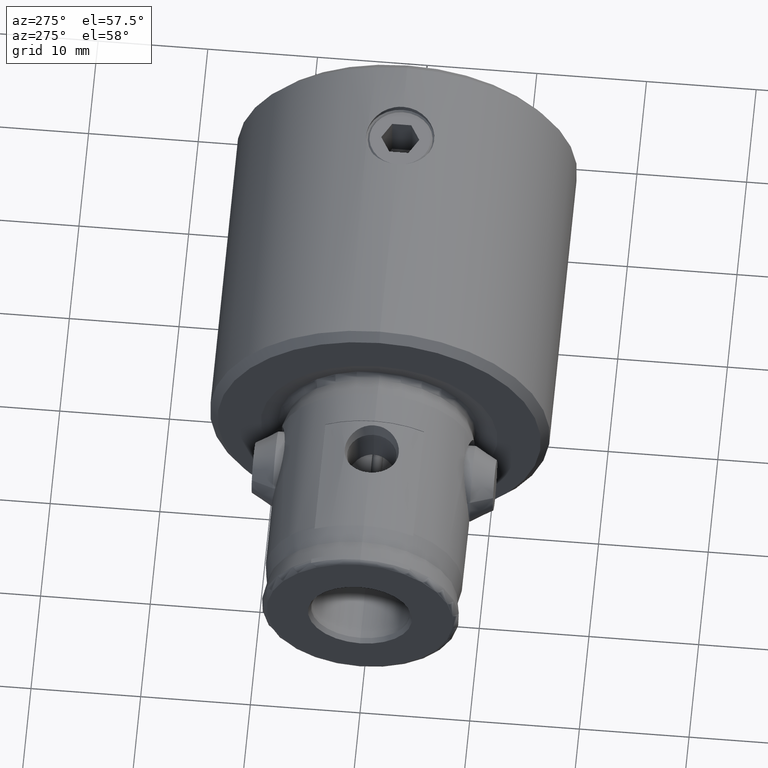
[diagram: clean part render]
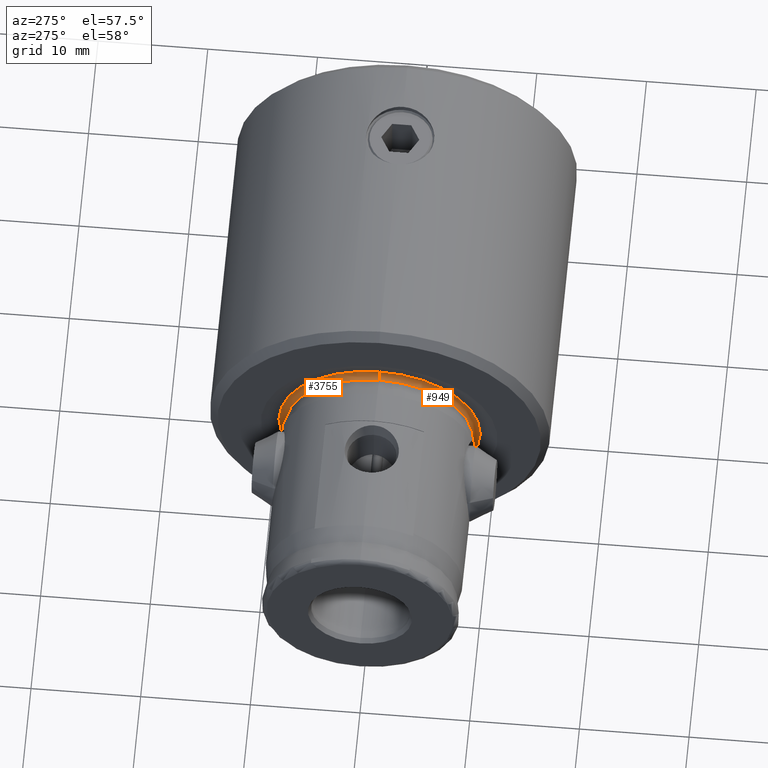
[diagram: same view with one multi-face feature highlighted, each face labeled with its STEP entity id]
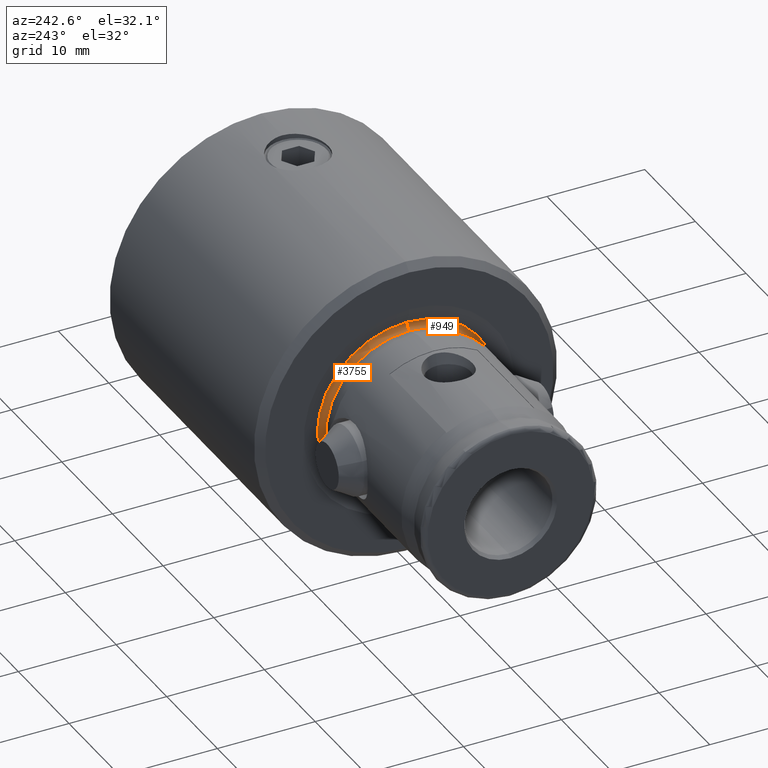
[diagram: same view with one multi-face feature highlighted, each face labeled with its STEP entity id]
A machine part, auxiliary view. The highlighted faces form ONE feature: a constant-radius fillet chain: 2 tangent blend faces with common blend radius 0.5 mm. The faces share edges in the B-rep.
A second angle (auxiliary view) of the same feature is appended — it is thin or edge-on in the first view.
Their STEP definitions:
[1] entity #3755 (Torus):
#37 = AXIS2_PLACEMENT_3D ( 'NONE', #2705, #3056, #1349 ) ;
#169 = ORIENTED_EDGE ( 'NONE', *, *, #910, .T. ) ;
#287 = ORIENTED_EDGE ( 'NONE', *, *, #2762, .T. ) ;
#389 = ORIENTED_EDGE ( 'NONE', *, *, #4147, .F. ) ;
#557 = VERTEX_POINT ( 'NONE', #1750 ) ;
#576 = ORIENTED_EDGE ( 'NONE', *, *, #885, .F. ) ;
#643 = DIRECTION ( 'NONE',  ( 0.0000000000000000000, 0.0000000000000000000, -1.000000000000000000 ) ) ;
#785 = AXIS2_PLACEMENT_3D ( 'NONE', #1404, #3044, #3675 ) ;
#788 = CARTESIAN_POINT ( 'NONE',  ( 8.549999999999997200, 1.047073013270986600E-015, 30.05000000000000100 ) ) ;
#885 = EDGE_CURVE ( 'NONE', #1661, #3127, #4199, .T. ) ;
#910 = EDGE_CURVE ( 'NONE', #1661, #557, #2126, .T. ) ;
#1121 = VERTEX_POINT ( 'NONE', #788 ) ;
#1168 = FACE_OUTER_BOUND ( 'NONE', #3483, .T. ) ;
#1213 = AXIS2_PLACEMENT_3D ( 'NONE', #4062, #1847, #2848 ) ;
#1260 = DIRECTION ( 'NONE',  ( -1.224646799147353200E-016, 1.000000000000000000, 0.0000000000000000000 ) ) ;
#1349 = DIRECTION ( 'NONE',  ( 0.0000000000000000000, 0.0000000000000000000, -1.000000000000000000 ) ) ;
#1404 = CARTESIAN_POINT ( 'NONE',  ( 0.0000000000000000000, 0.0000000000000000000, 30.05000000000000100 ) ) ;
#1661 = VERTEX_POINT ( 'NONE', #3464 ) ;
#1750 = CARTESIAN_POINT ( 'NONE',  ( -8.549999999999997200, 0.0000000000000000000, 30.05000000000000100 ) ) ;
#1847 = DIRECTION ( 'NONE',  ( 0.0000000000000000000, 0.0000000000000000000, -1.000000000000000000 ) ) ;
#2126 = CIRCLE ( 'NONE', #37, 0.5000000000000004400 ) ;
#2309 = CARTESIAN_POINT ( 'NONE',  ( 9.179409522551257100, 0.0000000000000000000, 29.56703708685546400 ) ) ;
#2582 = CARTESIAN_POINT ( 'NONE',  ( 9.049999999999998900, 1.108305353228354600E-015, 30.05000000000000100 ) ) ;
#2584 = CIRCLE ( 'NONE', #3804, 0.5000000000000022200 ) ;
#2656 = CARTESIAN_POINT ( 'NONE',  ( 0.0000000000000000000, 0.0000000000000000000, 29.56703708685546400 ) ) ;
#2705 = CARTESIAN_POINT ( 'NONE',  ( -9.049999999999998900, 0.0000000000000000000, 30.05000000000000100 ) ) ;
#2762 = EDGE_CURVE ( 'NONE', #557, #1121, #3374, .T. ) ;
#2848 = DIRECTION ( 'NONE',  ( -1.000000000000000000, 0.0000000000000000000, 0.0000000000000000000 ) ) ;
#3044 = DIRECTION ( 'NONE',  ( 0.0000000000000000000, 0.0000000000000000000, -1.000000000000000000 ) ) ;
#3056 = DIRECTION ( 'NONE',  ( -0.0000000000000000000, -1.000000000000000000, -0.0000000000000000000 ) ) ;
#3127 = VERTEX_POINT ( 'NONE', #2309 ) ;
#3224 = AXIS2_PLACEMENT_3D ( 'NONE', #2656, #643, #4251 ) ;
#3374 = CIRCLE ( 'NONE', #785, 8.549999999999997200 ) ;
#3464 = CARTESIAN_POINT ( 'NONE',  ( -9.179409522551257100, 1.223095088055441700E-015, 29.56703708685546400 ) ) ;
#3465 = TOROIDAL_SURFACE ( 'NONE', #1213, 9.049999999999998900, 0.5000000000000020000 ) ;
#3483 = EDGE_LOOP ( 'NONE', ( #169, #287, #389, #576 ) ) ;
#3675 = DIRECTION ( 'NONE',  ( -1.000000000000000000, 0.0000000000000000000, 0.0000000000000000000 ) ) ;
#3755 = ADVANCED_FACE ( 'NONE', ( #1168 ), #3465, .F. ) ;
#3804 = AXIS2_PLACEMENT_3D ( 'NONE', #2582, #1260, #4218 ) ;
#4062 = CARTESIAN_POINT ( 'NONE',  ( 0.0000000000000000000, 0.0000000000000000000, 30.05000000000000100 ) ) ;
#4147 = EDGE_CURVE ( 'NONE', #3127, #1121, #2584, .T. ) ;
#4199 = CIRCLE ( 'NONE', #3224, 9.179409522551257100 ) ;
#4218 = DIRECTION ( 'NONE',  ( -1.000000000000000000, -1.224646799147352700E-016, 0.0000000000000000000 ) ) ;
#4251 = DIRECTION ( 'NONE',  ( -1.000000000000000000, 0.0000000000000000000, 0.0000000000000000000 ) ) ;
[2] entity #949 (Torus):
#31 = DIRECTION ( 'NONE',  ( -1.000000000000000000, 0.0000000000000000000, 0.0000000000000000000 ) ) ;
#37 = AXIS2_PLACEMENT_3D ( 'NONE', #2705, #3056, #1349 ) ;
#77 = CARTESIAN_POINT ( 'NONE',  ( 0.0000000000000000000, 0.0000000000000000000, 30.05000000000000100 ) ) ;
#78 = EDGE_LOOP ( 'NONE', ( #2183, #511, #367, #886 ) ) ;
#92 = EDGE_CURVE ( 'NONE', #1121, #557, #1553, .T. ) ;
#367 = ORIENTED_EDGE ( 'NONE', *, *, #910, .F. ) ;
#397 = DIRECTION ( 'NONE',  ( -1.000000000000000000, 0.0000000000000000000, 0.0000000000000000000 ) ) ;
#511 = ORIENTED_EDGE ( 'NONE', *, *, #92, .T. ) ;
#557 = VERTEX_POINT ( 'NONE', #1750 ) ;
#788 = CARTESIAN_POINT ( 'NONE',  ( 8.549999999999997200, 1.047073013270986600E-015, 30.05000000000000100 ) ) ;
#886 = ORIENTED_EDGE ( 'NONE', *, *, #1565, .F. ) ;
#910 = EDGE_CURVE ( 'NONE', #1661, #557, #2126, .T. ) ;
#949 = ADVANCED_FACE ( 'NONE', ( #3491 ), #3684, .F. ) ;
#1048 = CARTESIAN_POINT ( 'NONE',  ( 0.0000000000000000000, 0.0000000000000000000, 29.56703708685546400 ) ) ;
#1121 = VERTEX_POINT ( 'NONE', #788 ) ;
#1260 = DIRECTION ( 'NONE',  ( -1.224646799147353200E-016, 1.000000000000000000, 0.0000000000000000000 ) ) ;
#1349 = DIRECTION ( 'NONE',  ( 0.0000000000000000000, 0.0000000000000000000, -1.000000000000000000 ) ) ;
#1553 = CIRCLE ( 'NONE', #3006, 8.549999999999997200 ) ;
#1565 = EDGE_CURVE ( 'NONE', #3127, #1661, #3337, .T. ) ;
#1661 = VERTEX_POINT ( 'NONE', #3464 ) ;
#1705 = DIRECTION ( 'NONE',  ( 0.0000000000000000000, 0.0000000000000000000, -1.000000000000000000 ) ) ;
#1715 = DIRECTION ( 'NONE',  ( 0.0000000000000000000, 0.0000000000000000000, -1.000000000000000000 ) ) ;
#1750 = CARTESIAN_POINT ( 'NONE',  ( -8.549999999999997200, 0.0000000000000000000, 30.05000000000000100 ) ) ;
#2126 = CIRCLE ( 'NONE', #37, 0.5000000000000004400 ) ;
#2183 = ORIENTED_EDGE ( 'NONE', *, *, #4147, .T. ) ;
#2309 = CARTESIAN_POINT ( 'NONE',  ( 9.179409522551257100, 0.0000000000000000000, 29.56703708685546400 ) ) ;
#2404 = CARTESIAN_POINT ( 'NONE',  ( 0.0000000000000000000, 0.0000000000000000000, 30.05000000000000100 ) ) ;
#2467 = AXIS2_PLACEMENT_3D ( 'NONE', #1048, #1715, #3613 ) ;
#2582 = CARTESIAN_POINT ( 'NONE',  ( 9.049999999999998900, 1.108305353228354600E-015, 30.05000000000000100 ) ) ;
#2584 = CIRCLE ( 'NONE', #3804, 0.5000000000000022200 ) ;
#2705 = CARTESIAN_POINT ( 'NONE',  ( -9.049999999999998900, 0.0000000000000000000, 30.05000000000000100 ) ) ;
#3006 = AXIS2_PLACEMENT_3D ( 'NONE', #77, #1705, #397 ) ;
#3056 = DIRECTION ( 'NONE',  ( -0.0000000000000000000, -1.000000000000000000, -0.0000000000000000000 ) ) ;
#3127 = VERTEX_POINT ( 'NONE', #2309 ) ;
#3337 = CIRCLE ( 'NONE', #2467, 9.179409522551257100 ) ;
#3464 = CARTESIAN_POINT ( 'NONE',  ( -9.179409522551257100, 1.223095088055441700E-015, 29.56703708685546400 ) ) ;
#3491 = FACE_OUTER_BOUND ( 'NONE', #78, .T. ) ;
#3613 = DIRECTION ( 'NONE',  ( -1.000000000000000000, 0.0000000000000000000, 0.0000000000000000000 ) ) ;
#3648 = AXIS2_PLACEMENT_3D ( 'NONE', #2404, #3992, #31 ) ;
#3684 = TOROIDAL_SURFACE ( 'NONE', #3648, 9.049999999999998900, 0.5000000000000020000 ) ;
#3804 = AXIS2_PLACEMENT_3D ( 'NONE', #2582, #1260, #4218 ) ;
#3992 = DIRECTION ( 'NONE',  ( 0.0000000000000000000, 0.0000000000000000000, -1.000000000000000000 ) ) ;
#4147 = EDGE_CURVE ( 'NONE', #3127, #1121, #2584, .T. ) ;
#4218 = DIRECTION ( 'NONE',  ( -1.000000000000000000, -1.224646799147352700E-016, 0.0000000000000000000 ) ) ;